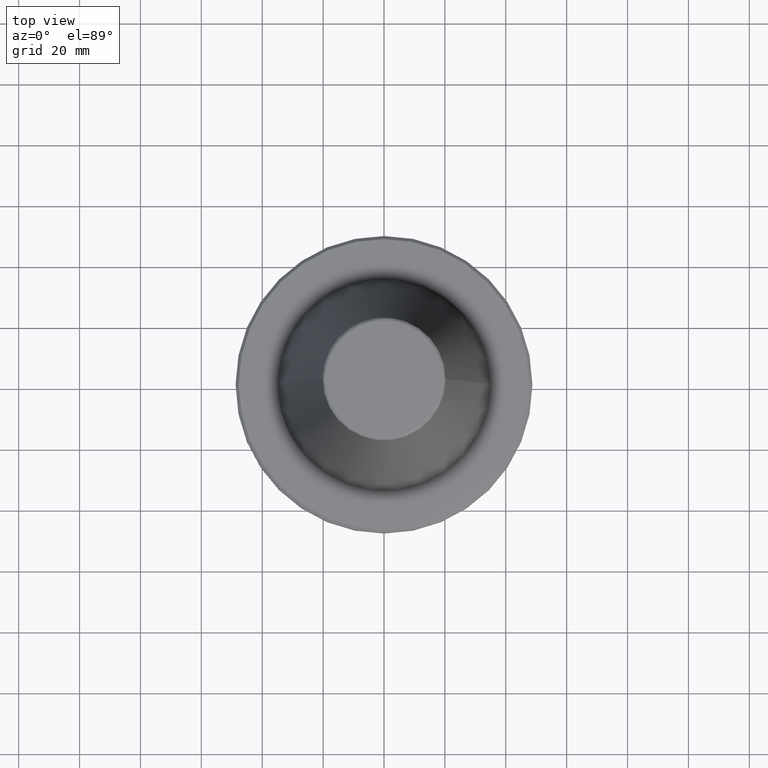
[diagram: clean part render]
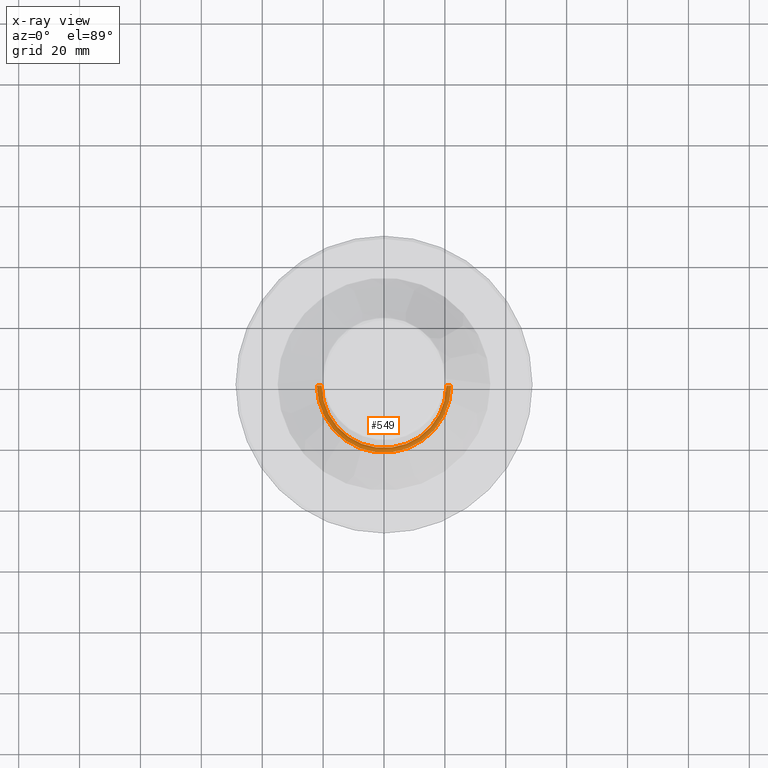
[diagram: x-ray — body ghosted, one internal face saturated and labeled with its STEP entity id]
A machine part, top view, then the same camera in x-ray: the body is ghosted and one INTERNAL B-rep face — a face not visible from any outside direction — is saturated and labeled: STEP entity #549.
In plain terms, the highlighted face is a freeform B-spline surface patch.
Its self-contained STEP definition (entity closure, byte-faithful):
#84 = ORIENTED_EDGE ( 'NONE', *, *, #837, .F. ) ;
#359 = CIRCLE ( 'NONE', #1744, 22.00774003920093900 ) ;
#465 = EDGE_LOOP ( 'NONE', ( #2215, #1924, #1965, #84 ) ) ;
#549 = ADVANCED_FACE ( 'NONE', ( #1826 ), #2388, .T. ) ;
#837 = EDGE_CURVE ( 'NONE', #1570, #1299, #2204, .T. ) ;
#848 = AXIS2_PLACEMENT_3D ( 'NONE', #1084, #1063, #954 ) ;
#954 = DIRECTION ( 'NONE',  ( 1.000000000000000000, 0.0000000000000000000, 0.0000000000000000000 ) ) ;
#1052 = DIRECTION ( 'NONE',  ( 0.0000000000000000000, 0.0000000000000000000, 1.000000000000000000 ) ) ;
#1063 = DIRECTION ( 'NONE',  ( 0.0000000000000000000, 1.000000000000000000, 0.0000000000000000000 ) ) ;
#1068 = CARTESIAN_POINT ( 'NONE',  ( -22.00774003920093900, 2.695170839547447700E-015, -29.19203749998446500 ) ) ;
#1084 = CARTESIAN_POINT ( 'NONE',  ( 21.25251813919448600, 0.0000000000000000000, -29.19203749998446500 ) ) ;
#1209 = CARTESIAN_POINT ( 'NONE',  ( 22.00774003920093900, -5.390341679094895300E-015, -29.19203749998446500 ) ) ;
#1215 = CARTESIAN_POINT ( 'NONE',  ( 22.00774003920092900, -44.01548007840187900, -29.19203749998446200 ) ) ;
#1216 = CARTESIAN_POINT ( 'NONE',  ( -22.00774003920094700, -44.01548007840187200, -29.19203749998446200 ) ) ;
#1220 = CARTESIAN_POINT ( 'NONE',  ( -22.00774003920093900, 2.695170839547447700E-015, -29.19203749998446500 ) ) ;
#1222 = CARTESIAN_POINT ( 'NONE',  ( 22.00774003920093900, -5.390341679094896100E-015, -27.68159369997156100 ) ) ;
#1229 = CARTESIAN_POINT ( 'NONE',  ( 22.00774003920093200, -44.01548007840187200, -27.68159369997155700 ) ) ;
#1232 = CARTESIAN_POINT ( 'NONE',  ( -22.00774003920094700, -44.01548007840186500, -27.68159369997155700 ) ) ;
#1239 = CARTESIAN_POINT ( 'NONE',  ( 20.49729623918803500, -5.020389646099341900E-015, -27.68159369997156100 ) ) ;
#1241 = CARTESIAN_POINT ( 'NONE',  ( 20.49729623918802800, -40.99459247837607700, -27.68159369997155700 ) ) ;
#1242 = CARTESIAN_POINT ( 'NONE',  ( -20.49729623918803900, -40.99459247837607700, -27.68159369997155700 ) ) ;
#1245 = CARTESIAN_POINT ( 'NONE',  ( 0.0000000000000000000, 0.0000000000000000000, -29.19203749998446500 ) ) ;
#1247 = CARTESIAN_POINT ( 'NONE',  ( -20.49729623918803500, 2.510194823049671000E-015, -27.68159369997156100 ) ) ;
#1250 = CARTESIAN_POINT ( 'NONE',  ( 20.49729623918803500, -5.020389646099341900E-015, -29.19203749998446500 ) ) ;
#1254 = CARTESIAN_POINT ( 'NONE',  ( 20.49729623918802400, -40.99459247837607000, -29.19203749998446200 ) ) ;
#1299 = VERTEX_POINT ( 'NONE', #1600 ) ;
#1312 = AXIS2_PLACEMENT_3D ( 'NONE', #1245, #1052, #2163 ) ;
#1345 = CARTESIAN_POINT ( 'NONE',  ( -22.00774003920093900, 2.695170839547448100E-015, -27.68159369997156100 ) ) ;
#1361 = VERTEX_POINT ( 'NONE', #1068 ) ;
#1372 = DIRECTION ( 'NONE',  ( 1.000000000000000000, 0.0000000000000000000, 0.0000000000000000000 ) ) ;
#1374 = DIRECTION ( 'NONE',  ( 0.0000000000000000000, 0.0000000000000000000, 1.000000000000000000 ) ) ;
#1377 = CARTESIAN_POINT ( 'NONE',  ( 0.0000000000000000000, 0.0000000000000000000, -29.19203749998446500 ) ) ;
#1570 = VERTEX_POINT ( 'NONE', #2152 ) ;
#1600 = CARTESIAN_POINT ( 'NONE',  ( 22.00774003920093900, 0.0000000000000000000, -29.19203749998446500 ) ) ;
#1601 = EDGE_CURVE ( 'NONE', #2110, #1361, #1767, .T. ) ;
#1614 = CIRCLE ( 'NONE', #1312, 20.49729623918803500 ) ;
#1744 = AXIS2_PLACEMENT_3D ( 'NONE', #1377, #1374, #1372 ) ;
#1767 = CIRCLE ( 'NONE', #2124, 0.7552219000064517300 ) ;
#1826 = FACE_OUTER_BOUND ( 'NONE', #465, .T. ) ;
#1873 = EDGE_CURVE ( 'NONE', #1361, #1299, #359, .T. ) ;
#1924 = ORIENTED_EDGE ( 'NONE', *, *, #1601, .T. ) ;
#1965 = ORIENTED_EDGE ( 'NONE', *, *, #1873, .T. ) ;
#1973 = EDGE_CURVE ( 'NONE', #2110, #1570, #1614, .T. ) ;
#1989 = DIRECTION ( 'NONE',  ( -1.000000000000000000, 1.224646799147352700E-016, 0.0000000000000000000 ) ) ;
#1991 = DIRECTION ( 'NONE',  ( -1.224646799147353200E-016, -1.000000000000000000, 0.0000000000000000000 ) ) ;
#1995 = CARTESIAN_POINT ( 'NONE',  ( -21.25251813919448600, 2.602682831298559100E-015, -29.19203749998446500 ) ) ;
#2031 = CARTESIAN_POINT ( 'NONE',  ( -20.49729623918803500, 2.602682831298559100E-015, -29.19203749998446500 ) ) ;
#2061 = CARTESIAN_POINT ( 'NONE',  ( -20.49729623918803500, 2.510194823049671000E-015, -29.19203749998446500 ) ) ;
#2110 = VERTEX_POINT ( 'NONE', #2031 ) ;
#2124 = AXIS2_PLACEMENT_3D ( 'NONE', #1995, #1991, #1989 ) ;
#2152 = CARTESIAN_POINT ( 'NONE',  ( 20.49729623918803500, 0.0000000000000000000, -29.19203749998446500 ) ) ;
#2163 = DIRECTION ( 'NONE',  ( 1.000000000000000000, 0.0000000000000000000, 0.0000000000000000000 ) ) ;
#2204 = CIRCLE ( 'NONE', #848, 0.7552219000064517300 ) ;
#2215 = ORIENTED_EDGE ( 'NONE', *, *, #1973, .F. ) ;
#2239 = CARTESIAN_POINT ( 'NONE',  ( -20.49729623918803900, -40.99459247837606300, -29.19203749998446200 ) ) ;
#2388 =( BOUNDED_SURFACE ( )  B_SPLINE_SURFACE ( 3, 3, ( 
 ( #2061, #2239, #1254, #1250 ),
 ( #1247, #1242, #1241, #1239 ),
 ( #1345, #1232, #1229, #1222 ),
 ( #1220, #1216, #1215, #1209 ) ),
 .UNSPECIFIED., .F., .F., .T. ) 
 B_SPLINE_SURFACE_WITH_KNOTS ( ( 4, 4 ),
 ( 4, 4 ),
 ( 0.0000000000000000000, 1.000000000000000000 ),
 ( 0.0000000000000000000, 1.000000000000000000 ),
 .UNSPECIFIED. ) 
 GEOMETRIC_REPRESENTATION_ITEM ( )  RATIONAL_B_SPLINE_SURFACE ( (
 ( 1.000000000000000000, 0.3333333333333334300, 0.3333333333333334300, 1.000000000000000000),
 ( 0.3333333333333333700, 0.1111111111111111600, 0.1111111111111111600, 0.3333333333333333700),
 ( 0.3333333333333333700, 0.1111111111111111600, 0.1111111111111111600, 0.3333333333333333700),
 ( 1.000000000000000000, 0.3333333333333334300, 0.3333333333333334300, 1.000000000000000000) ) ) 
 REPRESENTATION_ITEM ( '' )  SURFACE ( )  );